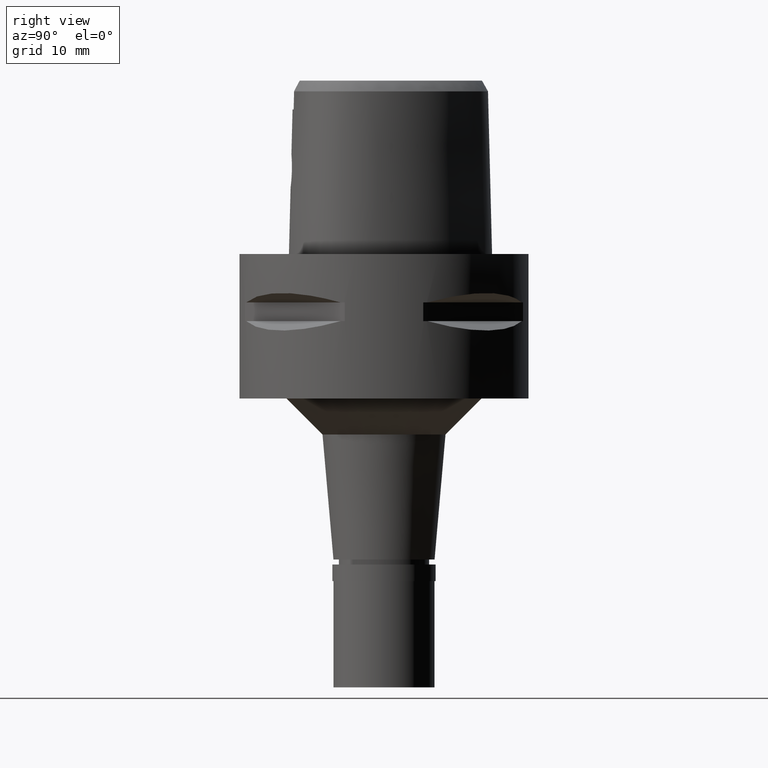
[diagram: clean part render]
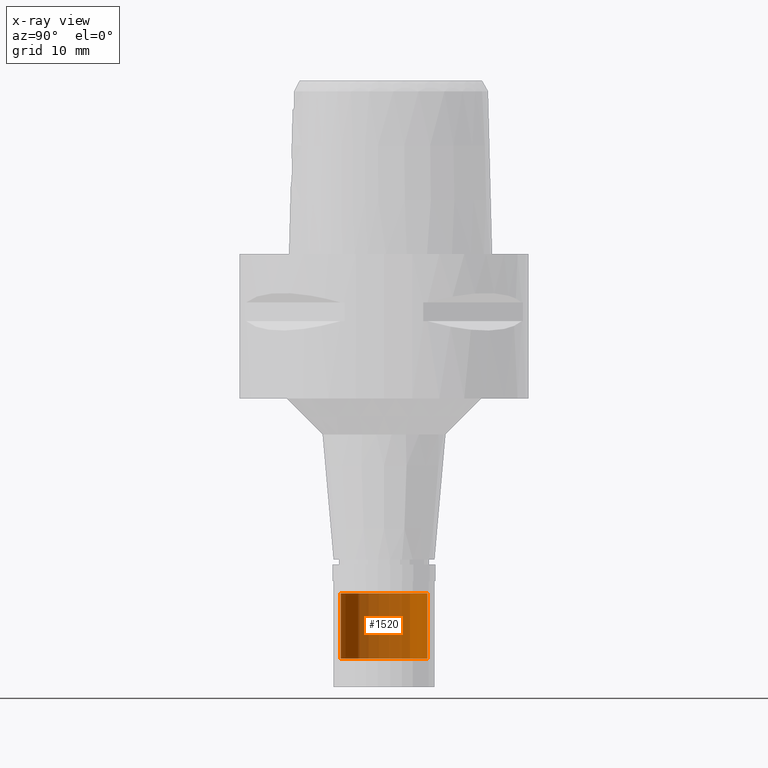
[diagram: x-ray — body ghosted, one internal face saturated and labeled with its STEP entity id]
A machine part, right view, then the same camera in x-ray: the body is ghosted and one INTERNAL B-rep face — a face not visible from any outside direction — is saturated and labeled: STEP entity #1520.
In plain terms, the highlighted cylindrical surface (partial cylindrical patch) has radius 6 mm, axis along (0, 0, -1).
Its self-contained STEP definition (entity closure, byte-faithful):
#146 = ORIENTED_EDGE ( 'NONE', *, *, #2900, .T. ) ;
#206 = EDGE_CURVE ( 'NONE', #3440, #2218, #3463, .T. ) ;
#472 = EDGE_CURVE ( 'NONE', #2218, #4391, #2982, .T. ) ;
#535 = AXIS2_PLACEMENT_3D ( 'NONE', #1405, #602, #3783 ) ;
#558 = ORIENTED_EDGE ( 'NONE', *, *, #472, .T. ) ;
#602 = DIRECTION ( 'NONE',  ( 0.0000000000000000000, 0.0000000000000000000, -1.000000000000000000 ) ) ;
#624 = DIRECTION ( 'NONE',  ( 0.0000000000000000000, -1.000000000000000000, 0.0000000000000000000 ) ) ;
#673 = DIRECTION ( 'NONE',  ( 0.0000000000000000000, 0.0000000000000000000, -1.000000000000000000 ) ) ;
#770 = EDGE_CURVE ( 'NONE', #3024, #4391, #3101, .T. ) ;
#827 = VECTOR ( 'NONE', #1375, 1000.000000000000000 ) ;
#896 = EDGE_LOOP ( 'NONE', ( #558, #3163, #146, #2641 ) ) ;
#1291 = AXIS2_PLACEMENT_3D ( 'NONE', #1731, #3807, #624 ) ;
#1375 = DIRECTION ( 'NONE',  ( 0.0000000000000000000, 0.0000000000000000000, -1.000000000000000000 ) ) ;
#1405 = CARTESIAN_POINT ( 'NONE',  ( 0.0000000000000000000, 0.0000000000000000000, 2.799999999999999822 ) ) ;
#1406 = DIRECTION ( 'NONE',  ( 0.0000000000000000000, 1.000000000000000000, 0.0000000000000000000 ) ) ;
#1477 = DIRECTION ( 'NONE',  ( 0.0000000000000000000, 0.0000000000000000000, 1.000000000000000000 ) ) ;
#1520 = ADVANCED_FACE ( 'NONE', ( #4581 ), #4190, .T. ) ;
#1720 = CARTESIAN_POINT ( 'NONE',  ( 0.0000000000000000000, -6.000000000000000000, -56.00000000000000000 ) ) ;
#1731 = CARTESIAN_POINT ( 'NONE',  ( 0.0000000000000000000, 0.0000000000000000000, -47.00000000000000000 ) ) ;
#2058 = CARTESIAN_POINT ( 'NONE',  ( 0.0000000000000000000, 6.000000000000000000, -47.00000000000000000 ) ) ;
#2116 = CIRCLE ( 'NONE', #1291, 6.000000000000000000 ) ;
#2218 = VERTEX_POINT ( 'NONE', #3303 ) ;
#2641 = ORIENTED_EDGE ( 'NONE', *, *, #206, .T. ) ;
#2900 = EDGE_CURVE ( 'NONE', #3024, #3440, #2116, .T. ) ;
#2945 = CARTESIAN_POINT ( 'NONE',  ( 0.0000000000000000000, 6.000000000000000000, -47.00000000000000000 ) ) ;
#2982 = CIRCLE ( 'NONE', #3871, 6.000000000000000000 ) ;
#3024 = VERTEX_POINT ( 'NONE', #3313 ) ;
#3101 = LINE ( 'NONE', #4518, #827 ) ;
#3163 = ORIENTED_EDGE ( 'NONE', *, *, #770, .F. ) ;
#3231 = CARTESIAN_POINT ( 'NONE',  ( 0.0000000000000000000, 0.0000000000000000000, -56.00000000000000000 ) ) ;
#3303 = CARTESIAN_POINT ( 'NONE',  ( 0.0000000000000000000, 6.000000000000000000, -56.00000000000000000 ) ) ;
#3313 = CARTESIAN_POINT ( 'NONE',  ( 0.0000000000000000000, -6.000000000000000000, -47.00000000000000000 ) ) ;
#3440 = VERTEX_POINT ( 'NONE', #2945 ) ;
#3463 = LINE ( 'NONE', #2058, #4017 ) ;
#3783 = DIRECTION ( 'NONE',  ( 0.0000000000000000000, -1.000000000000000000, 0.0000000000000000000 ) ) ;
#3807 = DIRECTION ( 'NONE',  ( 0.0000000000000000000, 0.0000000000000000000, -1.000000000000000000 ) ) ;
#3871 = AXIS2_PLACEMENT_3D ( 'NONE', #3231, #1477, #1406 ) ;
#4017 = VECTOR ( 'NONE', #673, 1000.000000000000000 ) ;
#4190 = CYLINDRICAL_SURFACE ( 'NONE', #535, 6.000000000000000000 ) ;
#4391 = VERTEX_POINT ( 'NONE', #1720 ) ;
#4518 = CARTESIAN_POINT ( 'NONE',  ( 0.0000000000000000000, -6.000000000000000000, -47.00000000000000000 ) ) ;
#4581 = FACE_OUTER_BOUND ( 'NONE', #896, .T. ) ;